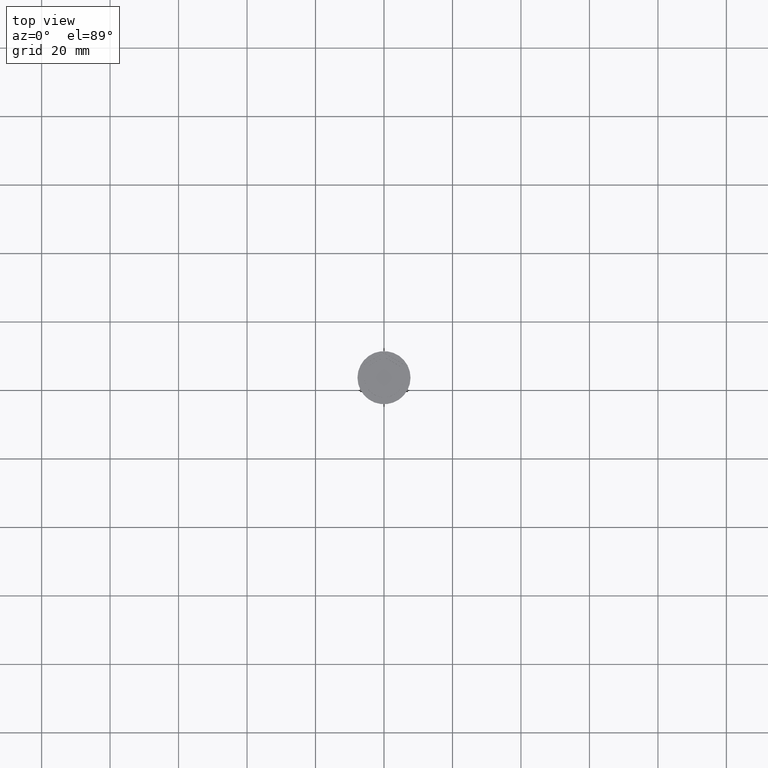
[diagram: clean part render]
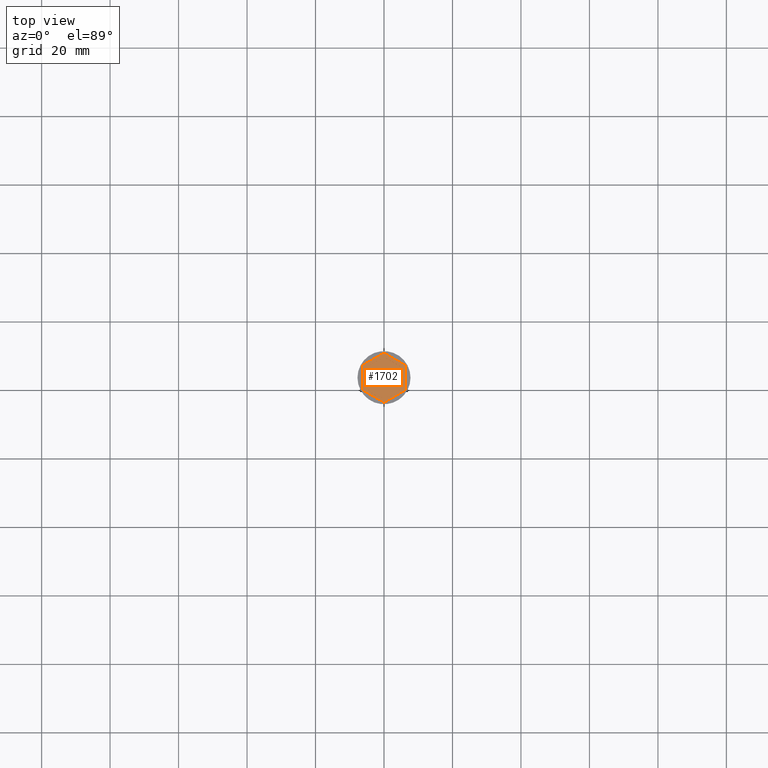
[diagram: same view with one face highlighted and labeled with its STEP entity id]
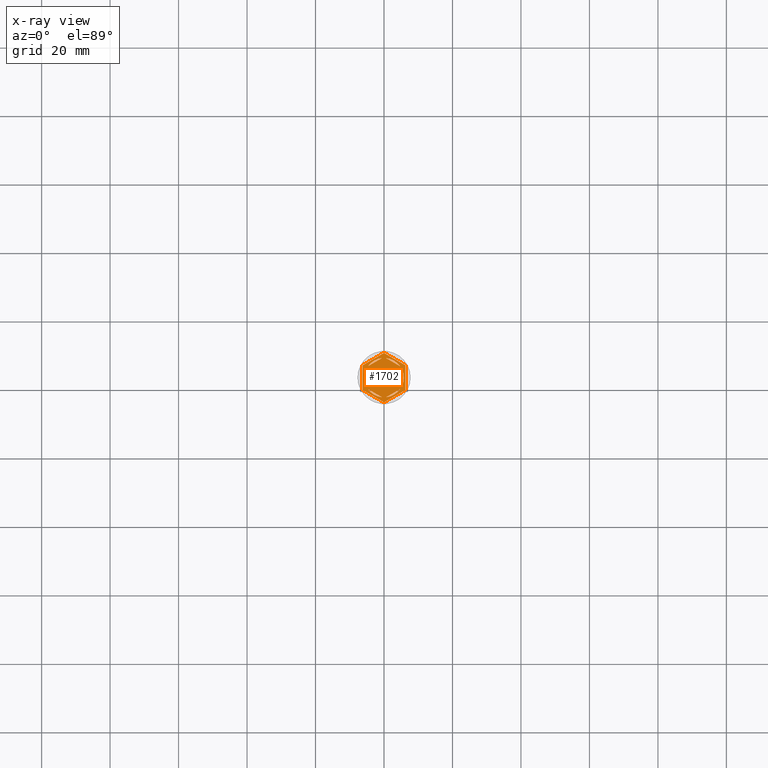
[diagram: x-ray of the same camera — body ghosted, the highlighted face saturated]
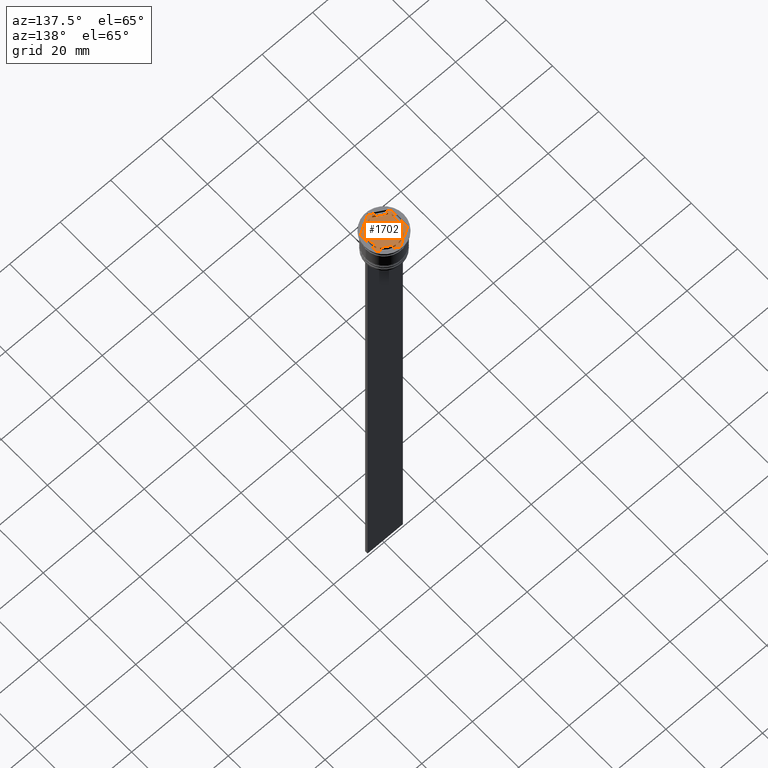
[diagram: same view with one face highlighted and labeled with its STEP entity id]
A machine part, top view. The second image highlights one B-rep face of the part: STEP entity #1702.
The next image is the same camera in x-ray: the body ghosted, the highlighted face saturated — about 0% of this face is hidden behind the body in this view.
A second angle (auxiliary view) of the same face is appended — the face is thin or edge-on in the first view.
In plain terms, the highlighted planar face has unit normal (0, 0, 1).
Its self-contained STEP definition (entity closure, byte-faithful):
#12 = EDGE_LOOP ( 'NONE', ( #936, #926 ) ) ;
#17 = EDGE_CURVE ( 'NONE', #1591, #261, #285, .T. ) ;
#22 = DIRECTION ( 'NONE',  ( 0.000000000000000000, -1.000000000000000000, 0.000000000000000000 ) ) ;
#41 = CARTESIAN_POINT ( 'NONE',  ( 0.5939903988410126789, 5.719237309824160675, -1.000000000000000888 ) ) ;
#70 = DIRECTION ( 'NONE',  ( 1.000000000000000000, 0.000000000000000000, 0.000000000000000000 ) ) ;
#94 = CARTESIAN_POINT ( 'NONE',  ( -6.249999999999999112, 3.608439182435158710, -1.000000000000000000 ) ) ;
#129 = ORIENTED_EDGE ( 'NONE', *, *, #337, .T. ) ;
#131 = DIRECTION ( 'NONE',  ( 0.8660254037844387076, 0.4999999999999999445, -0.000000000000000000 ) ) ;
#154 = VERTEX_POINT ( 'NONE', #1763 ) ;
#157 = DIRECTION ( 'NONE',  ( 0.8660254037844387076, -0.4999999999999998335, 0.000000000000000000 ) ) ;
#171 = AXIS2_PLACEMENT_3D ( 'NONE', #1714, #1687, #70 ) ;
#189 = AXIS2_PLACEMENT_3D ( 'NONE', #216, #588, #1827 ) ;
#216 = CARTESIAN_POINT ( 'NONE',  ( 0.000000000000000000, 0.000000000000000000, -1.000000000000000000 ) ) ;
#236 = LINE ( 'NONE', #564, #2073 ) ;
#259 = CARTESIAN_POINT ( 'NONE',  ( -5.249999999999999112, 2.345207879911715310, -1.000000000000000888 ) ) ;
#261 = VERTEX_POINT ( 'NONE', #1619 ) ;
#269 = CARTESIAN_POINT ( 'NONE',  ( -4.656009601158991096, -3.374029429912444034, -1.000000000000000888 ) ) ;
#277 = DIRECTION ( 'NONE',  ( 2.403703357979454647E-16, 1.000000000000000000, 0.000000000000000000 ) ) ;
#278 = VERTEX_POINT ( 'NONE', #2035 ) ;
#280 = VECTOR ( 'NONE', #930, 1000.000000000000114 ) ;
#285 = LINE ( 'NONE', #432, #2148 ) ;
#288 = VERTEX_POINT ( 'NONE', #1667 ) ;
#289 = AXIS2_PLACEMENT_3D ( 'NONE', #1669, #723, #1254 ) ;
#301 = CIRCLE ( 'NONE', #1247, 5.750000000000000000 ) ;
#302 = ORIENTED_EDGE ( 'NONE', *, *, #1924, .F. ) ;
#324 = FACE_BOUND ( 'NONE', #12, .T. ) ;
#337 = EDGE_CURVE ( 'NONE', #1967, #2153, #236, .T. ) ;
#338 = FACE_OUTER_BOUND ( 'NONE', #1424, .T. ) ;
#355 = EDGE_LOOP ( 'NONE', ( #2177, #1870 ) ) ;
#375 = DIRECTION ( 'NONE',  ( 0.000000000000000000, 0.000000000000000000, 1.000000000000000000 ) ) ;
#376 = ORIENTED_EDGE ( 'NONE', *, *, #841, .F. ) ;
#432 = CARTESIAN_POINT ( 'NONE',  ( 6.250000000000000000, 3.608439182435161374, -1.000000000000000000 ) ) ;
#454 = VERTEX_POINT ( 'NONE', #1362 ) ;
#471 = LINE ( 'NONE', #1566, #686 ) ;
#492 = AXIS2_PLACEMENT_3D ( 'NONE', #741, #375, #567 ) ;
#514 = DIRECTION ( 'NONE',  ( 0.000000000000000000, 0.000000000000000000, 1.000000000000000000 ) ) ;
#519 = ORIENTED_EDGE ( 'NONE', *, *, #1060, .F. ) ;
#536 = CARTESIAN_POINT ( 'NONE',  ( 4.656009601158990208, -3.374029429912445810, -1.000000000000000888 ) ) ;
#547 = VERTEX_POINT ( 'NONE', #259 ) ;
#564 = CARTESIAN_POINT ( 'NONE',  ( -6.249999999999999112, 3.608439182435158710, -1.000000000000000000 ) ) ;
#567 = DIRECTION ( 'NONE',  ( 1.000000000000000000, 0.000000000000000000, 0.000000000000000000 ) ) ;
#575 = VECTOR ( 'NONE', #1832, 1000.000000000000114 ) ;
#578 = CARTESIAN_POINT ( 'NONE',  ( -0.5939903988410105695, 5.719237309824159787, -1.000000000000000888 ) ) ;
#588 = DIRECTION ( 'NONE',  ( 0.000000000000000000, 0.000000000000000000, 1.000000000000000000 ) ) ;
#592 = CARTESIAN_POINT ( 'NONE',  ( 0.5939903988410074609, -5.719237309824160675, -1.000000000000000888 ) ) ;
#601 = EDGE_LOOP ( 'NONE', ( #2075, #1494 ) ) ;
#614 = VERTEX_POINT ( 'NONE', #1379 ) ;
#645 = EDGE_CURVE ( 'NONE', #1997, #1353, #1262, .T. ) ;
#648 = CARTESIAN_POINT ( 'NONE',  ( 6.249999999999998224, -3.608439182435161374, -1.000000000000000000 ) ) ;
#657 = CARTESIAN_POINT ( 'NONE',  ( 0.000000000000000000, 0.000000000000000000, -1.000000000000000000 ) ) ;
#683 = EDGE_LOOP ( 'NONE', ( #1684, #519 ) ) ;
#686 = VECTOR ( 'NONE', #131, 1000.000000000000000 ) ;
#696 = EDGE_LOOP ( 'NONE', ( #376, #1637, #1647 ) ) ;
#720 = FACE_BOUND ( 'NONE', #696, .T. ) ;
#723 = DIRECTION ( 'NONE',  ( 0.000000000000000000, 0.000000000000000000, 1.000000000000000000 ) ) ;
#741 = CARTESIAN_POINT ( 'NONE',  ( 0.000000000000000000, 0.000000000000000000, -1.000000000000000000 ) ) ;
#754 = VERTEX_POINT ( 'NONE', #592 ) ;
#790 = LINE ( 'NONE', #2015, #2181 ) ;
#795 = DIRECTION ( 'NONE',  ( 0.000000000000000000, 0.000000000000000000, 1.000000000000000000 ) ) ;
#800 = EDGE_CURVE ( 'NONE', #1339, #1302, #1265, .T. ) ;
#814 = LINE ( 'NONE', #1529, #2039 ) ;
#827 = ORIENTED_EDGE ( 'NONE', *, *, #1208, .T. ) ;
#831 = LINE ( 'NONE', #2276, #2043 ) ;
#841 = EDGE_CURVE ( 'NONE', #547, #288, #2208, .T. ) ;
#880 = DIRECTION ( 'NONE',  ( 1.000000000000000000, 0.000000000000000000, 0.000000000000000000 ) ) ;
#883 = CARTESIAN_POINT ( 'NONE',  ( 4.656009601158988431, 3.374029429912448919, -1.000000000000000888 ) ) ;
#893 = ORIENTED_EDGE ( 'NONE', *, *, #1968, .T. ) ;
#926 = ORIENTED_EDGE ( 'NONE', *, *, #1122, .F. ) ;
#930 = DIRECTION ( 'NONE',  ( -0.8660254037844384856, 0.5000000000000002220, 0.000000000000000000 ) ) ;
#936 = ORIENTED_EDGE ( 'NONE', *, *, #1387, .F. ) ;
#978 = CARTESIAN_POINT ( 'NONE',  ( -6.249999999999999112, -3.608439182435161374, -1.000000000000000000 ) ) ;
#984 = ORIENTED_EDGE ( 'NONE', *, *, #1913, .F. ) ;
#998 = DIRECTION ( 'NONE',  ( 0.000000000000000000, 0.000000000000000000, 1.000000000000000000 ) ) ;
#1023 = DIRECTION ( 'NONE',  ( 1.000000000000000000, 0.000000000000000000, 0.000000000000000000 ) ) ;
#1032 = AXIS2_PLACEMENT_3D ( 'NONE', #1407, #514, #880 ) ;
#1037 = DIRECTION ( 'NONE',  ( 0.000000000000000000, 1.000000000000000000, 0.000000000000000000 ) ) ;
#1040 = VERTEX_POINT ( 'NONE', #1736 ) ;
#1060 = EDGE_CURVE ( 'NONE', #1353, #1997, #2143, .T. ) ;
#1102 = ORIENTED_EDGE ( 'NONE', *, *, #2036, .T. ) ;
#1108 = CARTESIAN_POINT ( 'NONE',  ( 8.729740977282959667E-16, -7.216878364870321860, -1.000000000000000000 ) ) ;
#1122 = EDGE_CURVE ( 'NONE', #1040, #154, #790, .T. ) ;
#1124 = CARTESIAN_POINT ( 'NONE',  ( -6.249999999999999112, -3.608439182435161374, -1.000000000000000000 ) ) ;
#1141 = EDGE_CURVE ( 'NONE', #1722, #278, #1534, .T. ) ;
#1166 = DIRECTION ( 'NONE',  ( -0.8660254037844387076, -0.4999999999999997224, 0.000000000000000000 ) ) ;
#1190 = DIRECTION ( 'NONE',  ( 1.000000000000000000, 0.000000000000000000, 0.000000000000000000 ) ) ;
#1208 = EDGE_CURVE ( 'NONE', #2153, #614, #1481, .T. ) ;
#1221 = VERTEX_POINT ( 'NONE', #536 ) ;
#1223 = LINE ( 'NONE', #1942, #575 ) ;
#1247 = AXIS2_PLACEMENT_3D ( 'NONE', #1553, #1354, #1190 ) ;
#1254 = DIRECTION ( 'NONE',  ( 1.000000000000000000, 0.000000000000000000, 0.000000000000000000 ) ) ;
#1260 = ORIENTED_EDGE ( 'NONE', *, *, #17, .T. ) ;
#1262 = CIRCLE ( 'NONE', #1032, 5.750000000000000000 ) ;
#1265 = LINE ( 'NONE', #1296, #280 ) ;
#1296 = CARTESIAN_POINT ( 'NONE',  ( -5.249999999999999112, -3.031088913245534311, -1.000000000000000888 ) ) ;
#1302 = VERTEX_POINT ( 'NONE', #269 ) ;
#1307 = VECTOR ( 'NONE', #157, 1000.000000000000114 ) ;
#1339 = VERTEX_POINT ( 'NONE', #1877 ) ;
#1353 = VERTEX_POINT ( 'NONE', #41 ) ;
#1354 = DIRECTION ( 'NONE',  ( 0.000000000000000000, 0.000000000000000000, 1.000000000000000000 ) ) ;
#1362 = CARTESIAN_POINT ( 'NONE',  ( -5.249999999999999112, -2.345207879911715310, -1.000000000000000888 ) ) ;
#1379 = CARTESIAN_POINT ( 'NONE',  ( 8.729740977282959667E-16, -7.216878364870321860, -1.000000000000000000 ) ) ;
#1385 = LINE ( 'NONE', #2115, #1966 ) ;
#1387 = EDGE_CURVE ( 'NONE', #154, #1040, #1952, .T. ) ;
#1407 = CARTESIAN_POINT ( 'NONE',  ( 0.000000000000000000, 0.000000000000000000, -1.000000000000000000 ) ) ;
#1423 = AXIS2_PLACEMENT_3D ( 'NONE', #1497, #795, #2210 ) ;
#1424 = EDGE_LOOP ( 'NONE', ( #1260, #1454, #129, #827, #1102, #893 ) ) ;
#1438 = FACE_BOUND ( 'NONE', #355, .T. ) ;
#1454 = ORIENTED_EDGE ( 'NONE', *, *, #2055, .T. ) ;
#1481 = LINE ( 'NONE', #1124, #1837 ) ;
#1488 = EDGE_CURVE ( 'NONE', #288, #454, #2269, .T. ) ;
#1494 = ORIENTED_EDGE ( 'NONE', *, *, #800, .F. ) ;
#1497 = CARTESIAN_POINT ( 'NONE',  ( 0.000000000000000000, 0.000000000000000000, -1.000000000000000000 ) ) ;
#1515 = CIRCLE ( 'NONE', #492, 5.750000000000000000 ) ;
#1529 = CARTESIAN_POINT ( 'NONE',  ( 6.249999999999998224, -3.608439182435161374, -1.000000000000000000 ) ) ;
#1534 = CIRCLE ( 'NONE', #289, 5.750000000000000000 ) ;
#1545 = AXIS2_PLACEMENT_3D ( 'NONE', #657, #998, #1023 ) ;
#1553 = CARTESIAN_POINT ( 'NONE',  ( 0.000000000000000000, 0.000000000000000000, -1.000000000000000000 ) ) ;
#1566 = CARTESIAN_POINT ( 'NONE',  ( 8.673617379884035472E-16, 6.062177826491070398, -1.000000000000000888 ) ) ;
#1591 = VERTEX_POINT ( 'NONE', #1593 ) ;
#1593 = CARTESIAN_POINT ( 'NONE',  ( 6.250000000000000000, 3.608439182435161374, -1.000000000000000000 ) ) ;
#1617 = EDGE_CURVE ( 'NONE', #1302, #1339, #1515, .T. ) ;
#1619 = CARTESIAN_POINT ( 'NONE',  ( 0.000000000000000000, 7.216878364870320084, -1.000000000000000000 ) ) ;
#1637 = ORIENTED_EDGE ( 'NONE', *, *, #2273, .F. ) ;
#1647 = ORIENTED_EDGE ( 'NONE', *, *, #1488, .F. ) ;
#1667 = CARTESIAN_POINT ( 'NONE',  ( -5.750000000000000000, 0.000000000000000000, -1.000000000000000000 ) ) ;
#1669 = CARTESIAN_POINT ( 'NONE',  ( 0.000000000000000000, 0.000000000000000000, -1.000000000000000000 ) ) ;
#1684 = ORIENTED_EDGE ( 'NONE', *, *, #645, .F. ) ;
#1687 = DIRECTION ( 'NONE',  ( 0.000000000000000000, 0.000000000000000000, 1.000000000000000000 ) ) ;
#1702 = ADVANCED_FACE ( 'NONE', ( #2342, #324, #1769, #2166, #720, #1438, #338 ), #1780, .T. ) ;
#1714 = CARTESIAN_POINT ( 'NONE',  ( 0.000000000000000000, 0.000000000000000000, -1.000000000000000000 ) ) ;
#1722 = VERTEX_POINT ( 'NONE', #578 ) ;
#1736 = CARTESIAN_POINT ( 'NONE',  ( 5.249999999999997335, 2.345207879911718862, -1.000000000000000888 ) ) ;
#1763 = CARTESIAN_POINT ( 'NONE',  ( 5.249999999999997335, -2.345207879911720639, -1.000000000000000888 ) ) ;
#1769 = FACE_BOUND ( 'NONE', #1920, .T. ) ;
#1780 = PLANE ( 'NONE',  #189 ) ;
#1783 = CARTESIAN_POINT ( 'NONE',  ( 5.249999999999997335, 3.031088913245537864, -1.000000000000000888 ) ) ;
#1827 = DIRECTION ( 'NONE',  ( 1.000000000000000000, 0.000000000000000000, -0.000000000000000000 ) ) ;
#1832 = DIRECTION ( 'NONE',  ( -0.8660254037844385966, -0.5000000000000001110, 0.000000000000000000 ) ) ;
#1837 = VECTOR ( 'NONE', #1872, 1000.000000000000227 ) ;
#1870 = ORIENTED_EDGE ( 'NONE', *, *, #1896, .F. ) ;
#1872 = DIRECTION ( 'NONE',  ( 0.8660254037844385966, -0.4999999999999998890, 0.000000000000000000 ) ) ;
#1877 = CARTESIAN_POINT ( 'NONE',  ( -0.5939903988410105695, -5.719237309824160675, -1.000000000000000888 ) ) ;
#1886 = DIRECTION ( 'NONE',  ( -0.8660254037844388186, 0.4999999999999997224, 0.000000000000000000 ) ) ;
#1896 = EDGE_CURVE ( 'NONE', #278, #1722, #471, .T. ) ;
#1913 = EDGE_CURVE ( 'NONE', #1221, #754, #1385, .T. ) ;
#1920 = EDGE_LOOP ( 'NONE', ( #302, #984 ) ) ;
#1924 = EDGE_CURVE ( 'NONE', #754, #1221, #301, .T. ) ;
#1942 = CARTESIAN_POINT ( 'NONE',  ( 0.000000000000000000, 7.216878364870320084, -1.000000000000000000 ) ) ;
#1952 = CIRCLE ( 'NONE', #1423, 5.750000000000000000 ) ;
#1954 = LINE ( 'NONE', #1108, #2003 ) ;
#1966 = VECTOR ( 'NONE', #1166, 1000.000000000000114 ) ;
#1967 = VERTEX_POINT ( 'NONE', #94 ) ;
#1968 = EDGE_CURVE ( 'NONE', #2173, #1591, #814, .T. ) ;
#1972 = DIRECTION ( 'NONE',  ( 0.8660254037844385966, 0.5000000000000001110, 0.000000000000000000 ) ) ;
#1997 = VERTEX_POINT ( 'NONE', #883 ) ;
#2003 = VECTOR ( 'NONE', #1972, 1000.000000000000000 ) ;
#2015 = CARTESIAN_POINT ( 'NONE',  ( 5.249999999999996447, -3.031088913245536975, -1.000000000000000888 ) ) ;
#2035 = CARTESIAN_POINT ( 'NONE',  ( -4.656009601158989319, 3.374029429912446698, -1.000000000000000888 ) ) ;
#2036 = EDGE_CURVE ( 'NONE', #614, #2173, #1954, .T. ) ;
#2039 = VECTOR ( 'NONE', #277, 1000.000000000000000 ) ;
#2043 = VECTOR ( 'NONE', #1037, 1000.000000000000000 ) ;
#2052 = DIRECTION ( 'NONE',  ( -1.430775808321103440E-16, -1.000000000000000000, 0.000000000000000000 ) ) ;
#2055 = EDGE_CURVE ( 'NONE', #261, #1967, #1223, .T. ) ;
#2073 = VECTOR ( 'NONE', #22, 1000.000000000000000 ) ;
#2075 = ORIENTED_EDGE ( 'NONE', *, *, #1617, .F. ) ;
#2115 = CARTESIAN_POINT ( 'NONE',  ( -1.734723475976807094E-15, -6.062177826491069510, -1.000000000000000888 ) ) ;
#2143 = LINE ( 'NONE', #1783, #1307 ) ;
#2148 = VECTOR ( 'NONE', #1886, 1000.000000000000000 ) ;
#2153 = VERTEX_POINT ( 'NONE', #978 ) ;
#2166 = FACE_BOUND ( 'NONE', #601, .T. ) ;
#2173 = VERTEX_POINT ( 'NONE', #648 ) ;
#2177 = ORIENTED_EDGE ( 'NONE', *, *, #1141, .F. ) ;
#2181 = VECTOR ( 'NONE', #2052, 1000.000000000000000 ) ;
#2208 = CIRCLE ( 'NONE', #171, 5.750000000000000000 ) ;
#2210 = DIRECTION ( 'NONE',  ( 1.000000000000000000, 0.000000000000000000, 0.000000000000000000 ) ) ;
#2269 = CIRCLE ( 'NONE', #1545, 5.750000000000000000 ) ;
#2273 = EDGE_CURVE ( 'NONE', #454, #547, #831, .T. ) ;
#2276 = CARTESIAN_POINT ( 'NONE',  ( -5.249999999999999112, 3.031088913245535199, -1.000000000000000888 ) ) ;
#2342 = FACE_BOUND ( 'NONE', #683, .T. ) ;